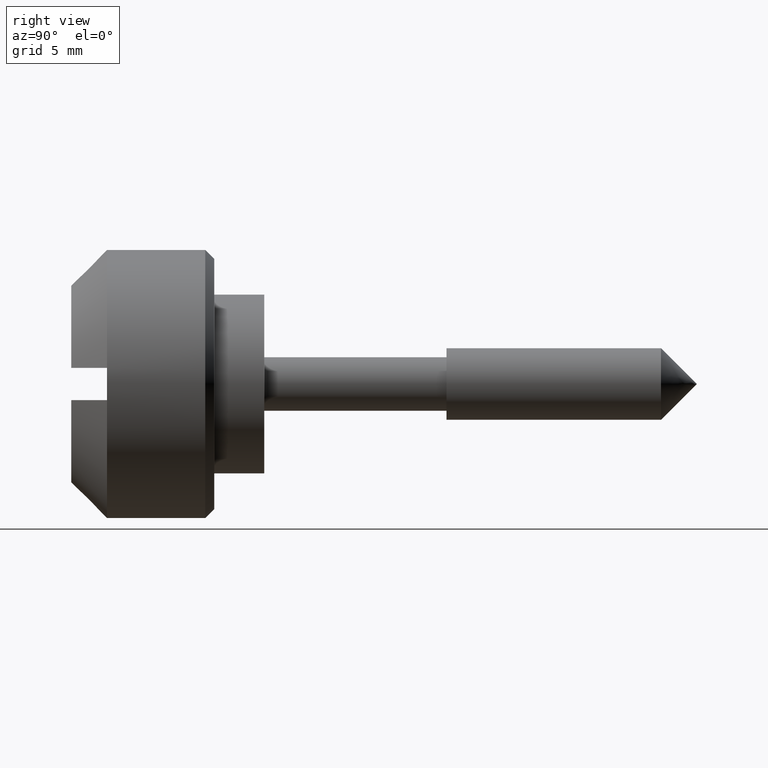
[diagram: clean part render]
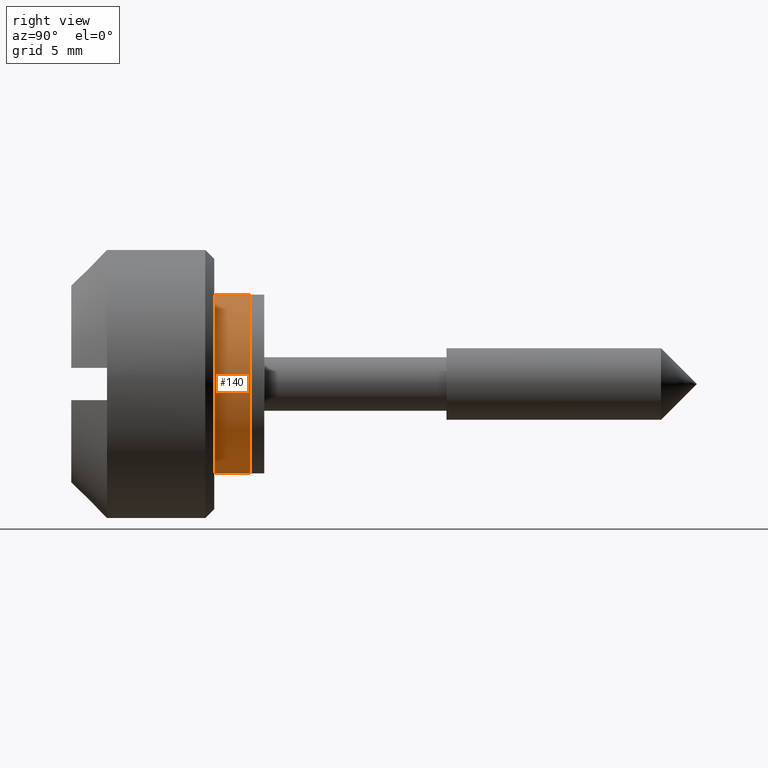
[diagram: same view with one face highlighted and labeled with its STEP entity id]
A machine part, right view. The second image highlights one B-rep face of the part: STEP entity #140.
In plain terms, the highlighted cylindrical surface (partial cylindrical patch) has radius 5 mm, axis along (0, -1, -0).
Its self-contained STEP definition (entity closure, byte-faithful):
#140=ADVANCED_FACE('',(#436),#435,.T.);
#435=CYLINDRICAL_SURFACE('',#707,5.00000000000E+00);
#436=FACE_OUTER_BOUND('',#708,.T.);
#704=CARTESIAN_POINT('',(-1.00000000000E+03,0.00000000000E+00,0.00000000000E+00));
#705=DIRECTION('',(-1.00000000000E+00,-0.00000000000E+00,-0.00000000000E+00));
#706=DIRECTION('',(0.00000000000E+00,1.22464679915E-16,-1.00000000000E+00));
#707=AXIS2_PLACEMENT_3D('',#704,#705,#706);
#708=EDGE_LOOP('',(#896,#897,#898,#899));
#896=ORIENTED_EDGE('',*,*,#982,.F.);
#897=ORIENTED_EDGE('',*,*,#1012,.F.);
#898=ORIENTED_EDGE('',*,*,#984,.F.);
#899=ORIENTED_EDGE('',*,*,#1013,.T.);
#982=EDGE_CURVE('',#1318,#1319,#1320,.T.);
#984=EDGE_CURVE('',#1332,#1333,#1334,.T.);
#1012=EDGE_CURVE('',#1333,#1318,#1520,.T.);
#1013=EDGE_CURVE('',#1332,#1319,#1526,.T.);
#1318=VERTEX_POINT('',#1773);
#1319=VERTEX_POINT('',#1774);
#1320=CIRCLE('',#1778,5.00000000000E+00);
#1332=VERTEX_POINT('',#1783);
#1333=VERTEX_POINT('',#1784);
#1334=CIRCLE('',#1788,5.00000000000E+00);
#1520=(BOUNDED_CURVE() B_SPLINE_CURVE(1,(#1907,#1908),.UNSPECIFIED.,.F.,.F.) B_SPLINE_CURVE_WITH_KNOTS((2,2),(8.33333134656E-02,9.16666653270E-01),.UNSPECIFIED.) CURVE() GEOMETRIC_REPRESENTATION_ITEM() RATIONAL_B_SPLINE_CURVE((1.00000000000E+00,1.00000000000E+00)) REPRESENTATION_ITEM('') );
#1526=(BOUNDED_CURVE() B_SPLINE_CURVE(1,(#1909,#1910),.UNSPECIFIED.,.F.,.F.) B_SPLINE_CURVE_WITH_KNOTS((2,2),(8.33333333333E-02,9.16666666667E-01),.UNSPECIFIED.) CURVE() GEOMETRIC_REPRESENTATION_ITEM() RATIONAL_B_SPLINE_CURVE((7.50000000000E-01,7.50000000000E-01)) REPRESENTATION_ITEM('') );
#1773=CARTESIAN_POINT('',(-2.00000000000E+00,0.00000000000E+00,-5.00000000000E+00));
#1774=CARTESIAN_POINT('',(-2.00000000000E+00,5.92118946467E-16,5.00000000000E+00));
#1775=CARTESIAN_POINT('',(-2.00000000000E+00,0.00000000000E+00,0.00000000000E+00));
#1776=DIRECTION('',(-1.00000000000E+00,0.00000000000E+00,-0.00000000000E+00));
#1777=DIRECTION('',(0.00000000000E+00,-1.22460635382E-16,-1.00000000000E+00));
#1778=AXIS2_PLACEMENT_3D('',#1775,#1776,#1777);
#1783=CARTESIAN_POINT('',(0.00000000000E+00,0.00000000000E+00,5.00000000000E+00));
#1784=CARTESIAN_POINT('',(0.00000000000E+00,5.92118946467E-16,-5.00000000000E+00));
#1785=CARTESIAN_POINT('',(0.00000000000E+00,0.00000000000E+00,0.00000000000E+00));
#1786=DIRECTION('',(1.00000000000E+00,0.00000000000E+00,-0.00000000000E+00));
#1787=DIRECTION('',(0.00000000000E+00,-1.22460635382E-16,1.00000000000E+00));
#1788=AXIS2_PLACEMENT_3D('',#1785,#1786,#1787);
#1907=CARTESIAN_POINT('',(4.76825537110E-08,6.12323399574E-16,-5.00000000000E+00));
#1908=CARTESIAN_POINT('',(-1.99999996785E+00,6.12323399574E-16,-5.00000000000E+00));
#1909=CARTESIAN_POINT('',(3.70074341542E-17,-2.96059473233E-16,5.00000000000E+00));
#1910=CARTESIAN_POINT('',(-2.00000000000E+00,-2.96059473233E-16,5.00000000000E+00));